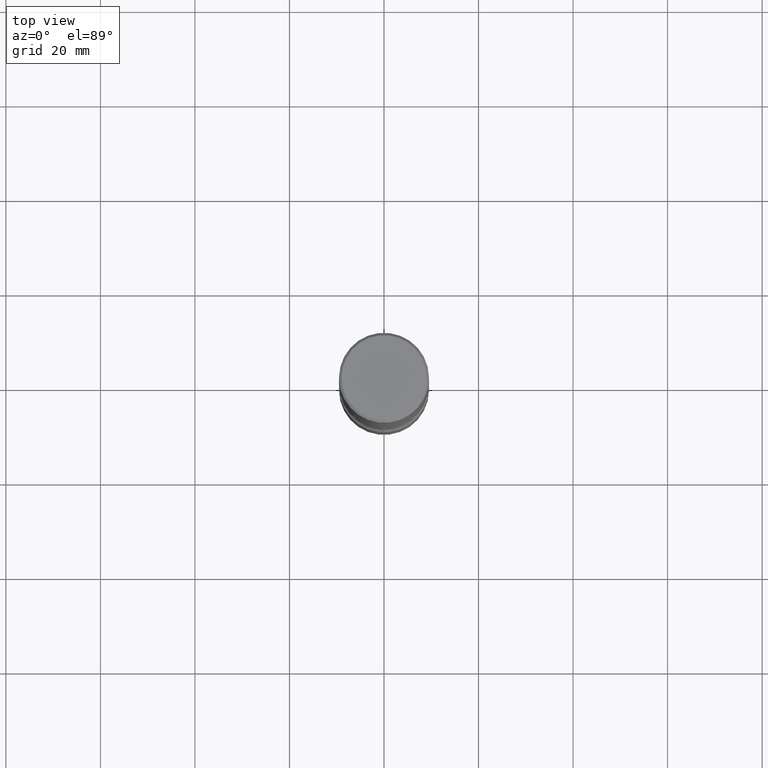
[diagram: clean part render]
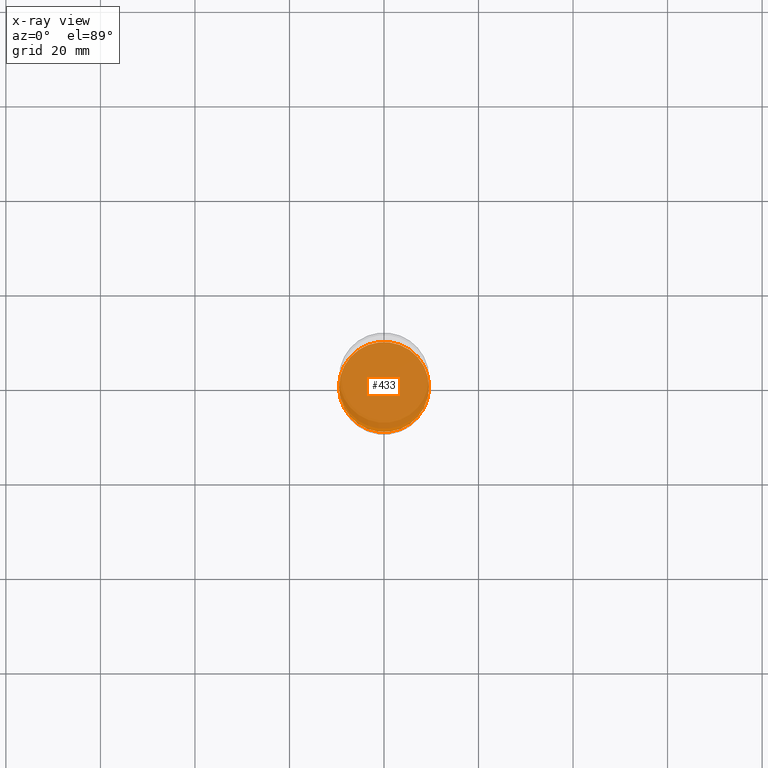
[diagram: x-ray — body ghosted, one internal face saturated and labeled with its STEP entity id]
A machine part, top view, then the same camera in x-ray: the body is ghosted and one INTERNAL B-rep face — a face not visible from any outside direction — is saturated and labeled: STEP entity #433.
In plain terms, the highlighted planar face has unit normal (0, -0, -1).
Its self-contained STEP definition (entity closure, byte-faithful):
#8 = AXIS2_PLACEMENT_3D ( 'NONE', #25, #413, #376 ) ;
#18 = CARTESIAN_POINT ( 'NONE',  ( 0.3750000000000003886, -1.833027702892650691E-14, -4.499999999999999112 ) ) ;
#25 = CARTESIAN_POINT ( 'NONE',  ( 1.100460962783311244E-28, -1.571166602479415374E-14, -4.499999999999999112 ) ) ;
#76 = CARTESIAN_POINT ( 'NONE',  ( 1.100460962783311244E-28, -1.571166602479415374E-14, -4.499999999999999112 ) ) ;
#111 = AXIS2_PLACEMENT_3D ( 'NONE', #76, #249, #456 ) ;
#154 = EDGE_CURVE ( 'NONE', #363, #188, #179, .T. ) ;
#164 = CARTESIAN_POINT ( 'NONE',  ( -0.3750000000000003886, -1.533405104263603449E-14, -4.499999999999999112 ) ) ;
#179 = CIRCLE ( 'NONE', #8, 0.3750000000000003886 ) ;
#188 = VERTEX_POINT ( 'NONE', #164 ) ;
#213 = CARTESIAN_POINT ( 'NONE',  ( 1.100460962783311244E-28, -1.571166602479415374E-14, -4.499999999999999112 ) ) ;
#244 = EDGE_CURVE ( 'NONE', #188, #363, #536, .T. ) ;
#249 = DIRECTION ( 'NONE',  ( 2.438088387897960049E-29, -3.491481338843145188E-15, -1.000000000000000000 ) ) ;
#277 = ORIENTED_EDGE ( 'NONE', *, *, #154, .T. ) ;
#296 = FACE_OUTER_BOUND ( 'NONE', #521, .T. ) ;
#348 = DIRECTION ( 'NONE',  ( -2.445468806185136597E-29, 3.491481338843145583E-15, 1.000000000000000000 ) ) ;
#363 = VERTEX_POINT ( 'NONE', #18 ) ;
#372 = AXIS2_PLACEMENT_3D ( 'NONE', #213, #348, #517 ) ;
#376 = DIRECTION ( 'NONE',  ( 1.000000000000000000, -6.982962677686265922E-15, 0.000000000000000000 ) ) ;
#413 = DIRECTION ( 'NONE',  ( -2.445468806185136597E-29, 3.491481338843145583E-15, 1.000000000000000000 ) ) ;
#433 = ADVANCED_FACE ( 'NONE', ( #296 ), #464, .F. ) ;
#456 = DIRECTION ( 'NONE',  ( -1.000000000000000000, 6.982962677686265922E-15, -4.876176775795935793E-29 ) ) ;
#464 = PLANE ( 'NONE',  #111 ) ;
#517 = DIRECTION ( 'NONE',  ( 1.000000000000000000, -6.982962677686265922E-15, 0.000000000000000000 ) ) ;
#521 = EDGE_LOOP ( 'NONE', ( #277, #552 ) ) ;
#536 = CIRCLE ( 'NONE', #372, 0.3750000000000003886 ) ;
#552 = ORIENTED_EDGE ( 'NONE', *, *, #244, .T. ) ;